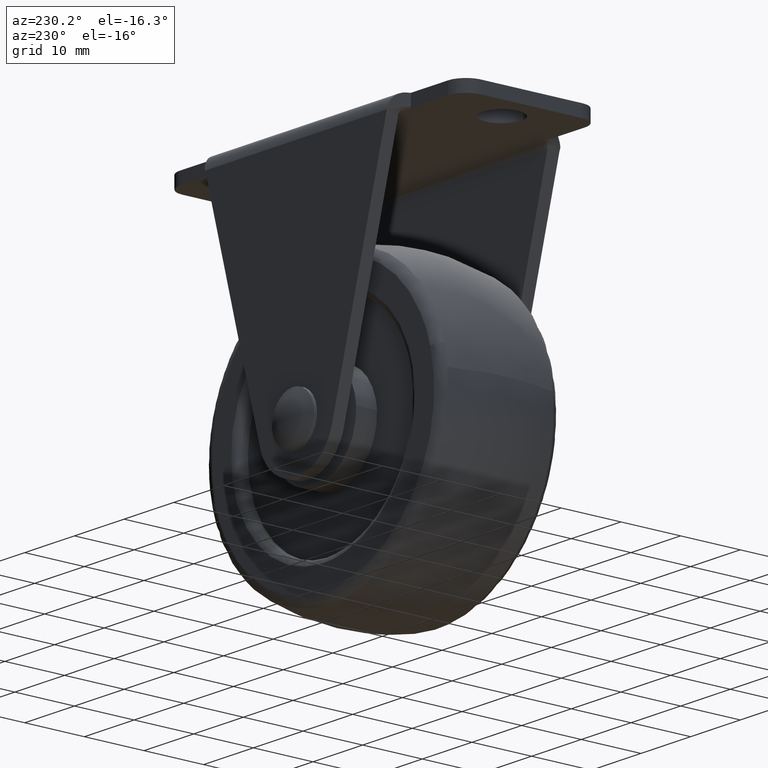
[diagram: clean part render]
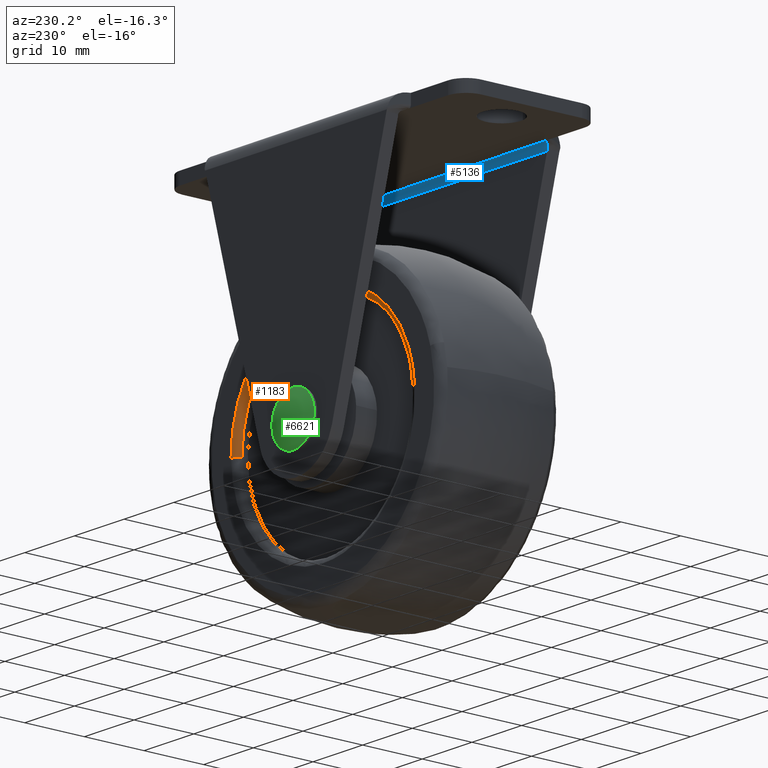
[diagram: same view with three faces highlighted in distinct colors, each labeled with its STEP entity id]
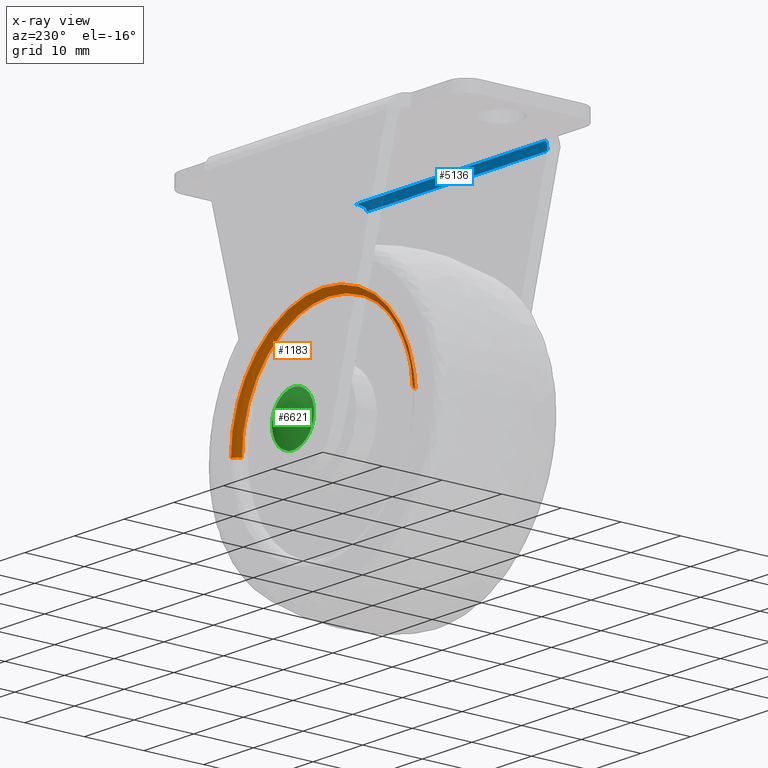
[diagram: x-ray of the same camera — body ghosted, the three highlighted faces saturated]
A machine part, auxiliary view with three faces highlighted in distinct colors.
The next image is the same camera in x-ray (body ghosted, the three faces saturated) — at least one of them is partly hidden behind the body in this view.
Their STEP definitions:

[orange] entity #1183 — the highlighted face is a freeform B-spline surface patch.
#258=CARTESIAN_POINT('',(17.498618273566461,9.000000001119879,-40.219905697983883));
#259=VERTEX_POINT('',#258);
#321=CARTESIAN_POINT('',(-17.457399292205260,9.000000001120672,-38.779668097396723));
#322=VERTEX_POINT('',#321);
#338=CARTESIAN_POINT('',(0.0,9.000000000000108,-22.500000000000000));
#339=VERTEX_POINT('',#338);
#340=CARTESIAN_POINT('',(0.0,9.000000000000108,-22.500000000000000));
#341=CARTESIAN_POINT('',(-16.319394827103885,9.000000000000108,-22.500000000000004));
#342=CARTESIAN_POINT('',(-17.457399292205260,9.000000001120672,-38.779668097396723));
#350=(BOUNDED_CURVE()B_SPLINE_CURVE(2,(#340,#341,#342),.UNSPECIFIED.,.F.,.U.)B_SPLINE_CURVE_WITH_KNOTS((3,3),(0.500000000000000,0.737833686534483),.UNSPECIFIED.)CURVE()GEOMETRIC_REPRESENTATION_ITEM()RATIONAL_B_SPLINE_CURVE((1.0,0.721360504034582,0.972879876385689))REPRESENTATION_ITEM(''));
#351=EDGE_CURVE('',#339,#322,#350,.T.);
#353=CARTESIAN_POINT('',(17.498618273566468,9.000000001119879,-40.219905697983876));
#354=CARTESIAN_POINT('',(17.499999999999996,9.000000000000108,-40.109957189883282));
#355=CARTESIAN_POINT('',(17.500000000000000,9.000000000000108,-40.0));
#356=CARTESIAN_POINT('',(17.499999999999996,9.000000000000108,-22.500000000000000));
#357=CARTESIAN_POINT('',(0.0,9.000000000000108,-22.500000000000000));
#365=(BOUNDED_CURVE()B_SPLINE_CURVE(2,(#353,#354,#355,#356,#357),.UNSPECIFIED.,.F.,.U.)B_SPLINE_CURVE_WITH_KNOTS((3,2,3),(0.247784295921222,0.250000000000000,0.500000000000000),.UNSPECIFIED.)CURVE()GEOMETRIC_REPRESENTATION_ITEM()RATIONAL_B_SPLINE_CURVE((0.994854295642846,0.997404141201714,1.0,0.707106781186548,1.0))REPRESENTATION_ITEM(''));
#366=EDGE_CURVE('',#259,#339,#365,.T.);
#1061=CARTESIAN_POINT('',(18.498539316770682,10.000000000000050,-40.232471737902948));
#1062=VERTEX_POINT('',#1061);
#1063=CARTESIAN_POINT('',(17.498618273566468,9.000000001119879,-40.219905697983876));
#1064=CARTESIAN_POINT('',(17.498618275806141,9.999999998001970,-40.219905697986803));
#1065=CARTESIAN_POINT('',(18.498539316770682,10.000000000000053,-40.232471737902948));
#1073=(BOUNDED_CURVE()B_SPLINE_CURVE(2,(#1063,#1064,#1065),.UNSPECIFIED.,.F.,.U.)B_SPLINE_CURVE_WITH_KNOTS((3,3),(-1.725134640985173,-0.274865358767267),.UNSPECIFIED.)CURVE()GEOMETRIC_REPRESENTATION_ITEM()RATIONAL_B_SPLINE_CURVE((0.883342148833628,0.624617224902848,0.883342148921956))REPRESENTATION_ITEM(''));
#1074=EDGE_CURVE('',#259,#1062,#1073,.T.);
#1091=CARTESIAN_POINT('',(-18.454964964174390,10.000000000000050,-38.709934845877541));
#1092=VERTEX_POINT('',#1091);
#1108=CARTESIAN_POINT('',(-17.457399292205256,9.000000001120673,-38.779668097396716));
#1109=CARTESIAN_POINT('',(-17.457399294443242,9.999999996258785,-38.779668097273493));
#1110=CARTESIAN_POINT('',(-18.454964964174394,10.000000000000053,-38.709934845877534));
#1118=(BOUNDED_CURVE()B_SPLINE_CURVE(2,(#1108,#1109,#1110),.UNSPECIFIED.,.F.,.U.)B_SPLINE_CURVE_WITH_KNOTS((3,3),(-1.725134640983552,-0.274865360554899),.UNSPECIFIED.)CURVE()GEOMETRIC_REPRESENTATION_ITEM()RATIONAL_B_SPLINE_CURVE((0.863472074571138,0.610566960931107,0.863472074034573))REPRESENTATION_ITEM(''));
#1119=EDGE_CURVE('',#322,#1092,#1118,.T.);
#1124=CARTESIAN_POINT('',(17.501038719203546,8.930462858573224,-40.219936115776747));
#1125=CARTESIAN_POINT('',(17.720974834980296,8.930462858573224,-22.718897396573198));
#1126=CARTESIAN_POINT('',(0.219936115776743,8.930462858573224,-22.498961280796458));
#1127=CARTESIAN_POINT('',(-16.307230000539800,8.930462858573224,-22.291263853304280));
#1128=CARTESIAN_POINT('',(-17.459814036348245,8.930462858573224,-38.779499298557610));
#1129=CARTESIAN_POINT('',(17.421087159452224,10.077537965281927,-40.218931361957026));
#1130=CARTESIAN_POINT('',(17.640018521409257,10.077537965281925,-22.797844202504805));
#1131=CARTESIAN_POINT('',(0.218931361957034,10.077537965281927,-22.578912840547776));
#1132=CARTESIAN_POINT('',(-16.232732223882920,10.077537965281923,-22.372164255781485));
#1133=CARTESIAN_POINT('',(-17.380050807001044,10.077537965281927,-38.785075021023182));
#1134=CARTESIAN_POINT('',(18.568071643830347,9.997579316185096,-40.233345552817227));
#1135=CARTESIAN_POINT('',(18.801417196647574,9.997579316185096,-21.665273908986872));
#1136=CARTESIAN_POINT('',(0.233345552817231,9.997579316185096,-21.431928356169653));
#1137=CARTESIAN_POINT('',(-17.301476776358026,9.997579316185092,-21.211567680681149));
#1138=CARTESIAN_POINT('',(-18.524333504795685,9.997579316185094,-38.705085747804169));
#1146=(BOUNDED_SURFACE()B_SPLINE_SURFACE(2,2,((#1124,#1129,#1134),(#1125,#1130,#1135),(#1126,#1131,#1136),(#1127,#1132,#1137),(#1128,#1133,#1138)),.UNSPECIFIED.,.F.,.F.,.U.)B_SPLINE_SURFACE_WITH_KNOTS((3,2,3),(3,3),(0.0,30.767017642333428,60.303354578973511),(0.0,1.822374806986977),.UNSPECIFIED.)GEOMETRIC_REPRESENTATION_ITEM()RATIONAL_B_SPLINE_SURFACE(((0.910479808527499,0.597479424905805,0.910480089222297),(0.643806446743224,0.422481752970333,0.643806645224419),(0.910479808527499,0.597479424905805,0.910480089222297),(0.654473381214595,0.429481659847752,0.654473582984334),(0.889999294342467,0.584039603701160,0.889999568723260)))REPRESENTATION_ITEM('')SURFACE());
#1147=ORIENTED_EDGE('',*,*,#351,.T.);
#1148=ORIENTED_EDGE('',*,*,#1119,.T.);
#1149=CARTESIAN_POINT('',(0.0,10.0,-21.500000000000000));
#1150=VERTEX_POINT('',#1149);
#1151=CARTESIAN_POINT('',(0.0,10.0,-21.500000000000000));
#1152=CARTESIAN_POINT('',(-17.251931674231432,10.0,-21.500000000000004));
#1153=CARTESIAN_POINT('',(-18.454964964174394,10.000000000000053,-38.709934845877541));
#1161=(BOUNDED_CURVE()B_SPLINE_CURVE(2,(#1151,#1152,#1153),.UNSPECIFIED.,.F.,.U.)B_SPLINE_CURVE_WITH_KNOTS((3,3),(0.500000000000000,0.737833686533135),.UNSPECIFIED.)CURVE()GEOMETRIC_REPRESENTATION_ITEM()RATIONAL_B_SPLINE_CURVE((1.0,0.721360504036161,0.972879876382838))REPRESENTATION_ITEM(''));
#1162=EDGE_CURVE('',#1150,#1092,#1161,.T.);
#1163=ORIENTED_EDGE('',*,*,#1162,.F.);
#1164=CARTESIAN_POINT('',(18.498539316770682,10.000000000000053,-40.232471737902948));
#1165=CARTESIAN_POINT('',(18.500000000000000,9.999999999999998,-40.116240457923453));
#1166=CARTESIAN_POINT('',(18.500000000000000,10.0,-40.0));
#1167=CARTESIAN_POINT('',(18.500000000000000,10.000000000000002,-21.499999999999996));
#1168=CARTESIAN_POINT('',(0.0,10.0,-21.500000000000000));
#1176=(BOUNDED_CURVE()B_SPLINE_CURVE(2,(#1164,#1165,#1166,#1167,#1168),.UNSPECIFIED.,.F.,.U.)B_SPLINE_CURVE_WITH_KNOTS((3,2,3),(0.247784295920331,0.250000000000000,0.500000000000000),.UNSPECIFIED.)CURVE()GEOMETRIC_REPRESENTATION_ITEM()RATIONAL_B_SPLINE_CURVE((0.994854295640797,0.997404141200671,1.0,0.707106781186548,1.0))REPRESENTATION_ITEM(''));
#1177=EDGE_CURVE('',#1062,#1150,#1176,.T.);
#1178=ORIENTED_EDGE('',*,*,#1177,.F.);
#1179=ORIENTED_EDGE('',*,*,#1074,.F.);
#1180=ORIENTED_EDGE('',*,*,#366,.T.);
#1181=EDGE_LOOP('',(#1147,#1148,#1163,#1178,#1179,#1180));
#1182=FACE_OUTER_BOUND('',#1181,.T.);
#1183=ADVANCED_FACE('',(#1182),#1146,.T.);

[blue] entity #5136 — the highlighted face is a freeform B-spline surface patch.
#3339=CARTESIAN_POINT('',(-18.926404772682201,-11.576025104863421,-2.002894096181100));
#3340=VERTEX_POINT('',#3339);
#3380=CARTESIAN_POINT('',(-19.284461912878651,-11.500000000000000,-2.0));
#3381=VERTEX_POINT('',#3380);
#3395=CARTESIAN_POINT('',(-18.926404772682201,-11.576025104863421,-2.002894096181100));
#3396=CARTESIAN_POINT('',(-18.957189162875309,-11.576860723387799,-2.002957808556784));
#3397=CARTESIAN_POINT('',(-18.986860186239230,-11.569541440659250,-2.002382692514202));
#3398=CARTESIAN_POINT('',(-19.045563527326639,-11.552103334444951,-2.001320097977387));
#3399=CARTESIAN_POINT('',(-19.074613576798502,-11.542072178484419,-2.000844834555509));
#3400=CARTESIAN_POINT('',(-19.133190491285291,-11.524069498093040,-2.000249144987421));
#3401=CARTESIAN_POINT('',(-19.162679328977148,-11.515933429868941,-2.000109005293315));
#3402=CARTESIAN_POINT('',(-19.222646587966121,-11.503954792992859,-1.999989882503534));
#3403=CARTESIAN_POINT('',(-19.253099092656541,-11.500000000000000,-2.0));
#3404=CARTESIAN_POINT('',(-19.284461912878601,-11.500000000000000,-2.0));
#3405=B_SPLINE_CURVE_WITH_KNOTS('',3,(#3395,#3396,#3397,#3398,#3399,#3400,#3401,#3402,#3403,#3404),.UNSPECIFIED.,.F.,.U.,(4,2,2,2,4),(0.0,0.250000000000000,0.500000000000000,0.750000000000000,1.0),.UNSPECIFIED.);
#3406=EDGE_CURVE('',#3340,#3381,#3405,.T.);
#3504=CARTESIAN_POINT('',(19.284461965403651,-11.500000000000000,-2.0));
#3505=VERTEX_POINT('',#3504);
#3506=CARTESIAN_POINT('',(18.926404867639199,-11.576025104971500,-2.002894096189340));
#3507=VERTEX_POINT('',#3506);
#3508=CARTESIAN_POINT('',(19.284461965403651,-11.500000000000000,-2.0));
#3509=CARTESIAN_POINT('',(19.253613383595599,-11.500000000000011,-2.000000000000001));
#3510=CARTESIAN_POINT('',(19.223408621719191,-11.503847554301620,-1.999989877724622));
#3511=CARTESIAN_POINT('',(19.163692958404020,-11.515687315044250,-2.000105527330998));
#3512=CARTESIAN_POINT('',(19.134175160737481,-11.523787447209919,-2.000242532925256));
#3513=CARTESIAN_POINT('',(19.075566294120129,-11.541759513407261,-2.000831856664523));
#3514=CARTESIAN_POINT('',(19.046521366088861,-11.551782094405940,-2.001303056790680));
#3515=CARTESIAN_POINT('',(18.987804917822341,-11.569296383758131,-2.002365306900992));
#3516=CARTESIAN_POINT('',(18.958157993558970,-11.576887018518811,-2.002959813449322));
#3517=CARTESIAN_POINT('',(18.926404867639199,-11.576025104971500,-2.002894096189340));
#3518=B_SPLINE_CURVE_WITH_KNOTS('',3,(#3508,#3509,#3510,#3511,#3512,#3513,#3514,#3515,#3516,#3517),.UNSPECIFIED.,.F.,.U.,(4,2,2,2,4),(0.0,0.250000000000000,0.500000000000000,0.750000000000000,1.0),.UNSPECIFIED.);
#3519=EDGE_CURVE('',#3505,#3507,#3518,.T.);
#3828=CARTESIAN_POINT('',(18.729368202012250,-11.936927863673100,-2.100503450842615));
#3829=VERTEX_POINT('',#3828);
#3830=CARTESIAN_POINT('',(18.926404867639189,-11.576025104971500,-2.002894096189340));
#3831=CARTESIAN_POINT('',(18.822816251977368,-11.765763482057212,-2.017360844385229));
#3832=CARTESIAN_POINT('',(18.729368202012271,-11.936927863673120,-2.100503450842615));
#3840=(BOUNDED_CURVE()B_SPLINE_CURVE(2,(#3830,#3831,#3832),.UNSPECIFIED.,.F.,.U.)CURVE()GEOMETRIC_REPRESENTATION_ITEM()QUASI_UNIFORM_CURVE()RATIONAL_B_SPLINE_CURVE((1.0,0.982372334281377,1.0))REPRESENTATION_ITEM(''));
#3841=EDGE_CURVE('',#3507,#3829,#3840,.T.);
#4324=CARTESIAN_POINT('',(-18.729368797742548,-11.936926267942900,-2.100502675722955));
#4325=VERTEX_POINT('',#4324);
#4326=CARTESIAN_POINT('',(-18.729368797742548,-11.936926267942900,-2.100502675722955));
#4327=CARTESIAN_POINT('',(-18.822816562472205,-11.765762565535599,-2.017360774483649));
#4328=CARTESIAN_POINT('',(-18.926404772682201,-11.576025104863421,-2.002894096181100));
#4336=(BOUNDED_CURVE()B_SPLINE_CURVE(2,(#4326,#4327,#4328),.UNSPECIFIED.,.F.,.U.)CURVE()GEOMETRIC_REPRESENTATION_ITEM()QUASI_UNIFORM_CURVE()RATIONAL_B_SPLINE_CURVE((1.0,0.982372500084329,1.0))REPRESENTATION_ITEM(''));
#4337=EDGE_CURVE('',#4325,#3340,#4336,.T.);
#4680=CARTESIAN_POINT('',(18.202673882767751,-12.463622182917620,-2.732731804007515));
#4681=VERTEX_POINT('',#4680);
#4682=CARTESIAN_POINT('',(18.729368202012271,-11.936927863673130,-2.100503450842618));
#4683=CARTESIAN_POINT('',(18.323322574913391,-12.342973490772014,-2.297738947263730));
#4684=CARTESIAN_POINT('',(18.202673882767751,-12.463622182917620,-2.732731804007515));
#4692=(BOUNDED_CURVE()B_SPLINE_CURVE(2,(#4682,#4683,#4684),.UNSPECIFIED.,.F.,.U.)CURVE()GEOMETRIC_REPRESENTATION_ITEM()QUASI_UNIFORM_CURVE()RATIONAL_B_SPLINE_CURVE((1.0,0.911438478934523,1.0))REPRESENTATION_ITEM(''));
#4693=EDGE_CURVE('',#3829,#4681,#4692,.T.);
#4857=CARTESIAN_POINT('',(-18.202672882767750,-12.463622182917620,-2.732731804007515));
#4858=VERTEX_POINT('',#4857);
#4859=CARTESIAN_POINT('',(-18.202672882767761,-12.463622182917630,-2.732731804007565));
#4860=CARTESIAN_POINT('',(-18.323321860292729,-12.342973205392681,-2.297737918342714));
#4861=CARTESIAN_POINT('',(-18.729368797742520,-11.936926267942880,-2.100502675722985));
#4869=(BOUNDED_CURVE()B_SPLINE_CURVE(2,(#4859,#4860,#4861),.UNSPECIFIED.,.F.,.U.)CURVE()GEOMETRIC_REPRESENTATION_ITEM()QUASI_UNIFORM_CURVE()RATIONAL_B_SPLINE_CURVE((1.0,0.911438113984902,1.0))REPRESENTATION_ITEM(''));
#4870=EDGE_CURVE('',#4858,#4325,#4869,.T.);
#5074=CARTESIAN_POINT('',(20.248685062360710,-11.456380612634661,-2.000951778418143));
#5075=CARTESIAN_POINT('',(-20.272790587259639,-11.456380612634661,-2.000951778418143));
#5076=CARTESIAN_POINT('',(20.248685062360707,-12.576060264459038,-1.952065509064016));
#5077=CARTESIAN_POINT('',(-20.272790587259635,-12.576060264459038,-1.952065509064016));
#5078=CARTESIAN_POINT('',(20.248685062360707,-12.497542913231923,-3.070058092043520));
#5079=CARTESIAN_POINT('',(-20.272790587259635,-12.497542913231923,-3.070058092043520));
#5087=(BOUNDED_SURFACE()B_SPLINE_SURFACE(1,2,((#5074,#5076,#5078),(#5075,#5077,#5079)),.UNSPECIFIED.,.F.,.F.,.U.)B_SPLINE_SURFACE_WITH_KNOTS((2,2),(3,3),(0.0,40.521475649620342),(0.0,0.994386594966985),.UNSPECIFIED.)GEOMETRIC_REPRESENTATION_ITEM()RATIONAL_B_SPLINE_SURFACE(((1.0,0.664513898535122,0.996233561259061),(1.0,0.664513898535122,0.996233561259061)))REPRESENTATION_ITEM('')SURFACE());
#5088=ORIENTED_EDGE('',*,*,#4870,.T.);
#5089=ORIENTED_EDGE('',*,*,#4337,.T.);
#5090=ORIENTED_EDGE('',*,*,#3406,.T.);
#5091=CARTESIAN_POINT('',(19.284461965403651,-11.500000000000000,-2.0));
#5092=CARTESIAN_POINT('',(-19.284461912878651,-11.500000000000000,-2.0));
#5093=QUASI_UNIFORM_CURVE('',1,(#5091,#5092),.UNSPECIFIED.,.F.,.U.);
#5094=EDGE_CURVE('',#3505,#3381,#5093,.T.);
#5095=ORIENTED_EDGE('',*,*,#5094,.F.);
#5096=ORIENTED_EDGE('',*,*,#3519,.T.);
#5097=ORIENTED_EDGE('',*,*,#3841,.T.);
#5098=ORIENTED_EDGE('',*,*,#4693,.T.);
#5099=CARTESIAN_POINT('',(18.128544945249100,-12.500000000000000,-3.0));
#5100=VERTEX_POINT('',#5099);
#5101=CARTESIAN_POINT('',(18.128544945249100,-12.500000000000000,-3.0));
#5102=CARTESIAN_POINT('',(18.166296065685366,-12.500000000000002,-2.863890213546391));
#5103=CARTESIAN_POINT('',(18.202673882767741,-12.463622182917620,-2.732731804007512));
#5111=(BOUNDED_CURVE()B_SPLINE_CURVE(2,(#5101,#5102,#5103),.UNSPECIFIED.,.F.,.U.)CURVE()GEOMETRIC_REPRESENTATION_ITEM()QUASI_UNIFORM_CURVE()RATIONAL_B_SPLINE_CURVE((1.0,0.990863810752445,1.0))REPRESENTATION_ITEM(''));
#5112=EDGE_CURVE('',#5100,#4681,#5111,.T.);
#5113=ORIENTED_EDGE('',*,*,#5112,.F.);
#5114=CARTESIAN_POINT('',(-18.128543945249149,-12.500000000000000,-3.0));
#5115=VERTEX_POINT('',#5114);
#5116=CARTESIAN_POINT('',(-18.128543945249149,-12.500000000000000,-3.0));
#5117=CARTESIAN_POINT('',(18.128544945249100,-12.500000000000000,-3.0));
#5118=QUASI_UNIFORM_CURVE('',1,(#5116,#5117),.UNSPECIFIED.,.F.,.U.);
#5119=EDGE_CURVE('',#5115,#5100,#5118,.T.);
#5120=ORIENTED_EDGE('',*,*,#5119,.F.);
#5121=CARTESIAN_POINT('',(-18.202672882767740,-12.463622182917620,-2.732731804007506));
#5122=CARTESIAN_POINT('',(-18.166295065685361,-12.499999999999998,-2.863890213546388));
#5123=CARTESIAN_POINT('',(-18.128543945249099,-12.500000000000000,-2.999999999999988));
#5131=(BOUNDED_CURVE()B_SPLINE_CURVE(2,(#5121,#5122,#5123),.UNSPECIFIED.,.F.,.U.)CURVE()GEOMETRIC_REPRESENTATION_ITEM()QUASI_UNIFORM_CURVE()RATIONAL_B_SPLINE_CURVE((1.0,0.990863810752336,1.0))REPRESENTATION_ITEM(''));
#5132=EDGE_CURVE('',#4858,#5115,#5131,.T.);
#5133=ORIENTED_EDGE('',*,*,#5132,.F.);
#5134=EDGE_LOOP('',(#5088,#5089,#5090,#5095,#5096,#5097,#5098,#5113,#5120,#5133));
#5135=FACE_OUTER_BOUND('',#5134,.T.);
#5136=ADVANCED_FACE('',(#5135),#5087,.F.);

[green] entity #6621 — the highlighted face is a freeform B-spline surface patch.
#6421=CARTESIAN_POINT('',(-4.242072912196576,14.999999987417761,-40.259456294241062));
#6422=VERTEX_POINT('',#6421);
#6428=CARTESIAN_POINT('',(0.0,14.999999987417761,-44.250000025256981));
#6429=VERTEX_POINT('',#6428);
#6430=CARTESIAN_POINT('',(0.0,14.999999987417761,-44.250000025256981));
#6431=CARTESIAN_POINT('',(-3.998000807992490,14.999999987417759,-44.250000025256995));
#6432=CARTESIAN_POINT('',(-4.242072912196576,14.999999987417757,-40.259456294241062));
#6440=(BOUNDED_CURVE()B_SPLINE_CURVE(2,(#6430,#6431,#6432),.UNSPECIFIED.,.F.,.U.)B_SPLINE_CURVE_WITH_KNOTS((3,3),(0.500000000000000,0.739332962236967),.UNSPECIFIED.)CURVE()GEOMETRIC_REPRESENTATION_ITEM()RATIONAL_B_SPLINE_CURVE((1.0,0.719603993289025,0.976072041662482))REPRESENTATION_ITEM(''));
#6441=EDGE_CURVE('',#6429,#6422,#6440,.T.);
#6443=CARTESIAN_POINT('',(4.220291392913490,14.999999987417761,-39.498361963307119));
#6444=VERTEX_POINT('',#6443);
#6445=CARTESIAN_POINT('',(4.220291392913490,14.999999987417761,-39.498361963307119));
#6446=CARTESIAN_POINT('',(4.250000025256980,14.999999987417764,-39.748301260847754));
#6447=CARTESIAN_POINT('',(4.250000025256980,14.999999987417761,-40.0));
#6448=CARTESIAN_POINT('',(4.250000025256980,14.999999987417766,-44.250000025256995));
#6449=CARTESIAN_POINT('',(0.0,14.999999987417761,-44.250000025256981));
#6457=(BOUNDED_CURVE()B_SPLINE_CURVE(2,(#6445,#6446,#6447,#6448,#6449),.UNSPECIFIED.,.F.,.U.)B_SPLINE_CURVE_WITH_KNOTS((3,2,3),(0.229562772367906,0.250000000000000,0.500000000000000),.UNSPECIFIED.)CURVE()GEOMETRIC_REPRESENTATION_ITEM()RATIONAL_B_SPLINE_CURVE((0.956027339951386,0.976056298460851,1.0,0.707106781186548,1.0))REPRESENTATION_ITEM(''));
#6458=EDGE_CURVE('',#6444,#6429,#6457,.T.);
#6506=CARTESIAN_POINT('',(0.0,14.999999987417761,-35.749999974743019));
#6507=VERTEX_POINT('',#6506);
#6508=CARTESIAN_POINT('',(0.0,14.999999987417761,-35.749999974743019));
#6509=CARTESIAN_POINT('',(3.774748479679799,14.999999987417761,-35.749999974743019));
#6510=CARTESIAN_POINT('',(4.220291392913490,14.999999987417757,-39.498361963307119));
#6518=(BOUNDED_CURVE()B_SPLINE_CURVE(2,(#6508,#6509,#6510),.UNSPECIFIED.,.F.,.U.)B_SPLINE_CURVE_WITH_KNOTS((3,3),(0.0,0.229562772367906),.UNSPECIFIED.)CURVE()GEOMETRIC_REPRESENTATION_ITEM()RATIONAL_B_SPLINE_CURVE((1.0,0.731050482725697,0.956027339951386))REPRESENTATION_ITEM(''));
#6519=EDGE_CURVE('',#6507,#6444,#6518,.T.);
#6521=CARTESIAN_POINT('',(-4.242072912196576,14.999999987417757,-40.259456294241062));
#6522=CARTESIAN_POINT('',(-4.250000025256980,14.999999987417755,-40.129849244852338));
#6523=CARTESIAN_POINT('',(-4.250000025256980,14.999999987417761,-40.0));
#6524=CARTESIAN_POINT('',(-4.250000025256980,14.999999987417766,-35.749999974743012));
#6525=CARTESIAN_POINT('',(0.0,14.999999987417761,-35.749999974743019));
#6533=(BOUNDED_CURVE()B_SPLINE_CURVE(2,(#6521,#6522,#6523,#6524,#6525),.UNSPECIFIED.,.F.,.U.)B_SPLINE_CURVE_WITH_KNOTS((3,2,3),(0.739332962236966,0.750000000000000,1.0),.UNSPECIFIED.)CURVE()GEOMETRIC_REPRESENTATION_ITEM()RATIONAL_B_SPLINE_CURVE((0.976072041662481,0.987502787897521,1.0,0.707106781186548,1.0))REPRESENTATION_ITEM(''));
#6534=EDGE_CURVE('',#6422,#6507,#6533,.T.);
#6591=CARTESIAN_POINT('',(-4.350507390299896,13.748177378660497,-35.649396702955556));
#6592=CARTESIAN_POINT('',(-2.311795007531402,14.803388527788234,-35.376308058098161));
#6593=CARTESIAN_POINT('',(2.311807876334576,14.803388527788234,-35.376308058098161));
#6594=CARTESIAN_POINT('',(4.350528747038857,13.748166324653861,-35.649399563732473));
#6595=CARTESIAN_POINT('',(-4.623602811194419,14.803437972972658,-37.688147630842245));
#6596=CARTESIAN_POINT('',(-2.466633118331841,16.0,-37.533312504849292));
#6597=CARTESIAN_POINT('',(2.466646849054504,16.0,-37.533312504849292));
#6598=CARTESIAN_POINT('',(4.623625317715193,14.803425487616963,-37.688149246447253));
#6599=CARTESIAN_POINT('',(-4.623602811194419,14.803437972972658,-42.311852281614655));
#6600=CARTESIAN_POINT('',(-2.466633118331841,16.0,-42.466687401744430));
#6601=CARTESIAN_POINT('',(2.466646849054505,16.0,-42.466687401744430));
#6602=CARTESIAN_POINT('',(4.623625317715192,14.803425487616963,-42.311850666009676));
#6603=CARTESIAN_POINT('',(-4.350507409760921,13.748177453859309,-44.350603151761185));
#6604=CARTESIAN_POINT('',(-2.311795018521830,14.803388612723856,-44.623691788797423));
#6605=CARTESIAN_POINT('',(2.311807887325065,14.803388612723856,-44.623691788797423));
#6606=CARTESIAN_POINT('',(4.350528766499968,13.748166399852595,-44.350600290984403));
#6614=(BOUNDED_SURFACE()B_SPLINE_SURFACE(2,2,((#6591,#6595,#6599,#6603),(#6592,#6596,#6600,#6604),(#6593,#6597,#6601,#6605),(#6594,#6598,#6602,#6606)),.UNSPECIFIED.,.F.,.F.,.U.)B_SPLINE_SURFACE_WITH_KNOTS((3,1,3),(3,1,3),(0.0,4.773414234494148,9.546855040603878),(0.0,4.773519464201511,9.547038747643731),.UNSPECIFIED.)GEOMETRIC_REPRESENTATION_ITEM()RATIONAL_B_SPLINE_SURFACE(((1.133951926541519,1.066974486804862,1.066974486804862,1.133951921469038),(1.066977439736657,1.0,1.0,1.066977434664175),(1.066977439736657,1.0,1.0,1.066977434664175),(1.133952672181928,1.066975232445271,1.066975232445271,1.133952667109446)))REPRESENTATION_ITEM('')SURFACE());
#6615=ORIENTED_EDGE('',*,*,#6519,.T.);
#6616=ORIENTED_EDGE('',*,*,#6458,.T.);
#6617=ORIENTED_EDGE('',*,*,#6441,.T.);
#6618=ORIENTED_EDGE('',*,*,#6534,.T.);
#6619=EDGE_LOOP('',(#6615,#6616,#6617,#6618));
#6620=FACE_OUTER_BOUND('',#6619,.T.);
#6621=ADVANCED_FACE('',(#6620),#6614,.T.);